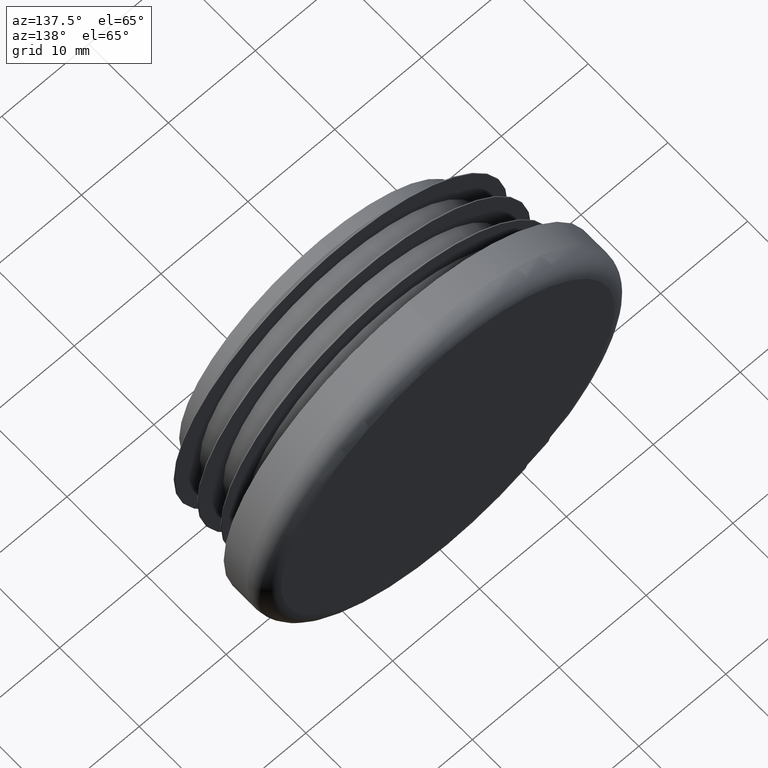
[diagram: clean part render]
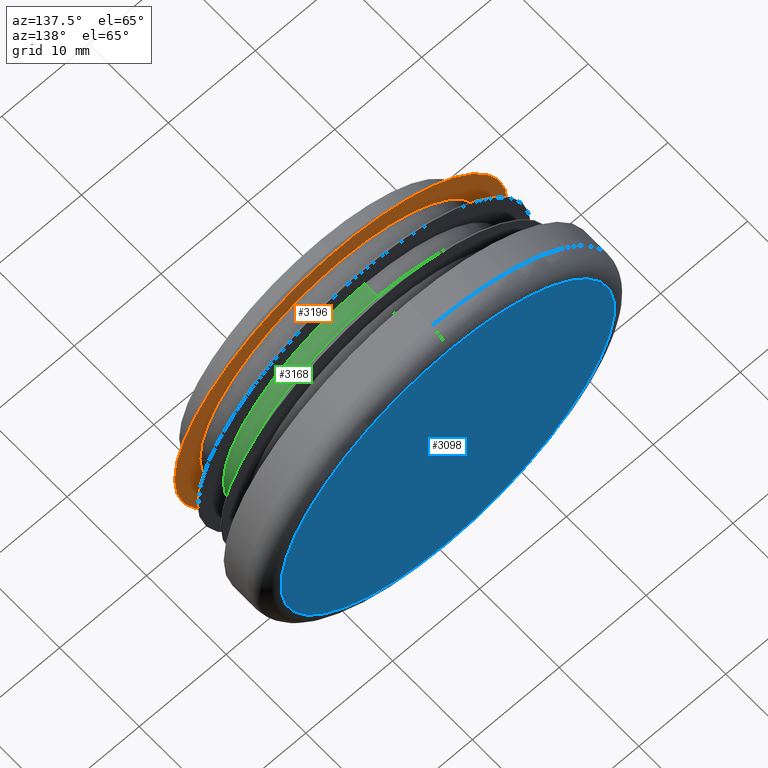
[diagram: same view with three faces highlighted in distinct colors, each labeled with its STEP entity id]
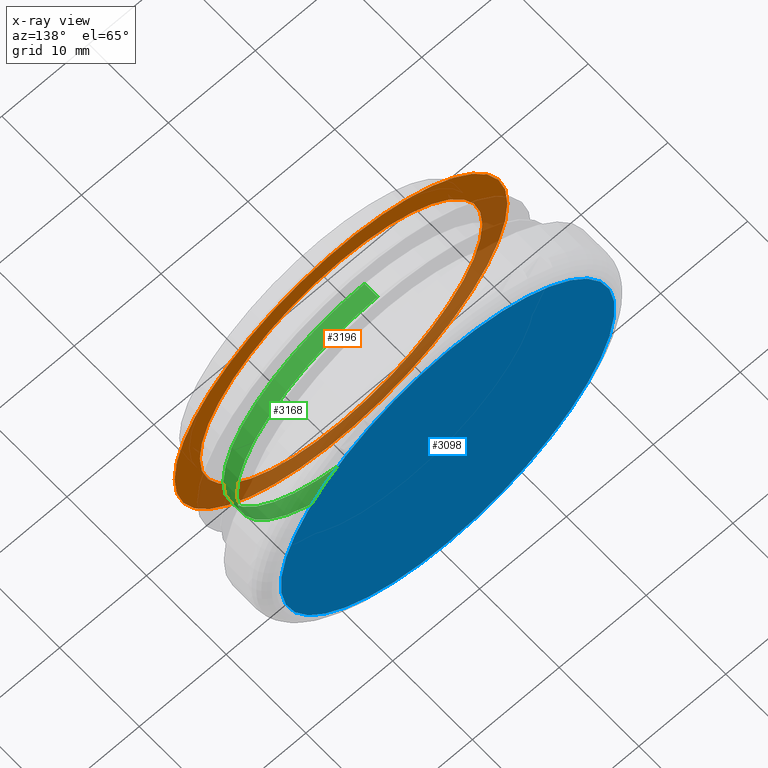
[diagram: x-ray of the same camera — body ghosted, the three highlighted faces saturated]
A machine part, auxiliary view with three faces highlighted in distinct colors.
The next image is the same camera in x-ray (body ghosted, the three faces saturated) — at least one of them is partly hidden behind the body in this view.
Their STEP definitions:

[orange] entity #3196 — the highlighted planar face has unit normal (-0, 1, 0).
#385 = DIRECTION ( 'NONE',  ( 1.047444401652940164E-14, -1.000000000000000000, -0.000000000000000000 ) ) ;
#465 = AXIS2_PLACEMENT_3D ( 'NONE', #8552, #12890, #6545 ) ;
#816 = AXIS2_PLACEMENT_3D ( 'NONE', #1197, #4304, #10779 ) ;
#888 = DIRECTION ( 'NONE',  ( -1.000000000000000000, -1.046171696281397461E-14, 0.000000000000000000 ) ) ;
#1197 = CARTESIAN_POINT ( 'NONE',  ( 16.25000000000006395, 2.599999999999997868, 0.000000000000000000 ) ) ;
#2364 = DIRECTION ( 'NONE',  ( 1.000000000000000000, 1.048533902581276840E-14, 0.000000000000000000 ) ) ;
#2425 = ORIENTED_EDGE ( 'NONE', *, *, #4796, .F. ) ;
#2606 = CARTESIAN_POINT ( 'NONE',  ( -1.780685865461278424E-27, 2.599999999999828226, -16.25000000000000000 ) ) ;
#3008 = CIRCLE ( 'NONE', #3315, 19.15000000000008740 ) ;
#3196 = ADVANCED_FACE ( 'NONE', ( #6382, #12854 ), #10697, .T. ) ;
#3315 = AXIS2_PLACEMENT_3D ( 'NONE', #10970, #5547, #2364 ) ;
#3347 = VERTEX_POINT ( 'NONE', #2606 ) ;
#4304 = DIRECTION ( 'NONE',  ( -1.047444401652940164E-14, 1.000000000000000000, 0.000000000000000000 ) ) ;
#4617 = DIRECTION ( 'NONE',  ( -1.000000000000000000, -1.046171696281397461E-14, 0.000000000000000000 ) ) ;
#4796 = EDGE_CURVE ( 'NONE', #10868, #5597, #13645, .T. ) ;
#4806 = ORIENTED_EDGE ( 'NONE', *, *, #12218, .T. ) ;
#5547 = DIRECTION ( 'NONE',  ( 1.047444401652940164E-14, -1.000000000000000000, -0.000000000000000000 ) ) ;
#5597 = VERTEX_POINT ( 'NONE', #7105 ) ;
#5951 = CARTESIAN_POINT ( 'NONE',  ( 1.990051048612668459E-15, 2.599999999999828226, 16.25000000000000000 ) ) ;
#6382 = FACE_BOUND ( 'NONE', #9624, .T. ) ;
#6511 = CIRCLE ( 'NONE', #12442, 16.25000000000000000 ) ;
#6545 = DIRECTION ( 'NONE',  ( 1.000000000000000000, 1.048533902581276840E-14, 0.000000000000000000 ) ) ;
#6638 = CARTESIAN_POINT ( 'NONE',  ( 0.000000000000000000, 2.599999999999828226, 0.000000000000000000 ) ) ;
#7105 = CARTESIAN_POINT ( 'NONE',  ( 19.15000000000005898, 2.600000000000027178, 0.000000000000000000 ) ) ;
#8186 = CARTESIAN_POINT ( 'NONE',  ( -19.15000000000011582, 2.599999999999625722, 2.346365830448889726E-15 ) ) ;
#8552 = CARTESIAN_POINT ( 'NONE',  ( -2.723355444297462579E-14, 2.599999999999826450, 0.000000000000000000 ) ) ;
#8826 = EDGE_CURVE ( 'NONE', #5597, #10868, #3008, .T. ) ;
#9142 = ORIENTED_EDGE ( 'NONE', *, *, #12114, .T. ) ;
#9363 = CARTESIAN_POINT ( 'NONE',  ( 0.000000000000000000, 2.599999999999828226, 0.000000000000000000 ) ) ;
#9624 = EDGE_LOOP ( 'NONE', ( #9142, #4806 ) ) ;
#10697 = PLANE ( 'NONE',  #816 ) ;
#10779 = DIRECTION ( 'NONE',  ( -1.000000000000000000, -1.047444401652940164E-14, 0.000000000000000000 ) ) ;
#10868 = VERTEX_POINT ( 'NONE', #8186 ) ;
#10970 = CARTESIAN_POINT ( 'NONE',  ( -2.723355444297462579E-14, 2.599999999999826450, 0.000000000000000000 ) ) ;
#11749 = AXIS2_PLACEMENT_3D ( 'NONE', #6638, #385, #4617 ) ;
#11807 = EDGE_LOOP ( 'NONE', ( #12946, #2425 ) ) ;
#12114 = EDGE_CURVE ( 'NONE', #3347, #12606, #12330, .T. ) ;
#12218 = EDGE_CURVE ( 'NONE', #12606, #3347, #6511, .T. ) ;
#12330 = CIRCLE ( 'NONE', #11749, 16.25000000000000000 ) ;
#12442 = AXIS2_PLACEMENT_3D ( 'NONE', #9363, #12644, #888 ) ;
#12606 = VERTEX_POINT ( 'NONE', #5951 ) ;
#12644 = DIRECTION ( 'NONE',  ( 1.047444401652940164E-14, -1.000000000000000000, -0.000000000000000000 ) ) ;
#12854 = FACE_OUTER_BOUND ( 'NONE', #11807, .T. ) ;
#12890 = DIRECTION ( 'NONE',  ( 1.047444401652940164E-14, -1.000000000000000000, -0.000000000000000000 ) ) ;
#12946 = ORIENTED_EDGE ( 'NONE', *, *, #8826, .F. ) ;
#13645 = CIRCLE ( 'NONE', #465, 19.15000000000008740 ) ;

[blue] entity #3098 — the highlighted planar face has unit normal (0, 1, 0).
#62 = VERTEX_POINT ( 'NONE', #194 ) ;
#194 = CARTESIAN_POINT ( 'NONE',  ( 0.000000000000000000, 16.00000000000000000, 19.19999999999999574 ) ) ;
#555 = AXIS2_PLACEMENT_3D ( 'NONE', #13740, #11528, #6564 ) ;
#2087 = AXIS2_PLACEMENT_3D ( 'NONE', #7804, #12012, #2546 ) ;
#2213 = EDGE_CURVE ( 'NONE', #6892, #62, #8414, .T. ) ;
#2546 = DIRECTION ( 'NONE',  ( 0.000000000000000000, 0.000000000000000000, 1.000000000000000000 ) ) ;
#3098 = ADVANCED_FACE ( 'NONE', ( #9711 ), #4067, .T. ) ;
#4067 = PLANE ( 'NONE',  #555 ) ;
#5489 = ORIENTED_EDGE ( 'NONE', *, *, #2213, .T. ) ;
#5727 = EDGE_LOOP ( 'NONE', ( #13732, #5489 ) ) ;
#5777 = DIRECTION ( 'NONE',  ( 0.000000000000000000, 0.000000000000000000, 1.000000000000000000 ) ) ;
#6564 = DIRECTION ( 'NONE',  ( 0.000000000000000000, -0.000000000000000000, 1.000000000000000000 ) ) ;
#6793 = DIRECTION ( 'NONE',  ( 0.000000000000000000, 1.000000000000000000, 0.000000000000000000 ) ) ;
#6892 = VERTEX_POINT ( 'NONE', #10856 ) ;
#7804 = CARTESIAN_POINT ( 'NONE',  ( 0.000000000000000000, 16.00000000000000000, 0.000000000000000000 ) ) ;
#8414 = CIRCLE ( 'NONE', #13187, 19.19999999999999574 ) ;
#9694 = EDGE_CURVE ( 'NONE', #62, #6892, #13691, .T. ) ;
#9711 = FACE_OUTER_BOUND ( 'NONE', #5727, .T. ) ;
#10856 = CARTESIAN_POINT ( 'NONE',  ( 2.473786534277652833E-15, 16.00000000000000000, -19.19999999999999574 ) ) ;
#11528 = DIRECTION ( 'NONE',  ( 0.000000000000000000, 1.000000000000000000, 0.000000000000000000 ) ) ;
#12012 = DIRECTION ( 'NONE',  ( 0.000000000000000000, 1.000000000000000000, 0.000000000000000000 ) ) ;
#12078 = CARTESIAN_POINT ( 'NONE',  ( 0.000000000000000000, 16.00000000000000000, 0.000000000000000000 ) ) ;
#13187 = AXIS2_PLACEMENT_3D ( 'NONE', #12078, #6793, #5777 ) ;
#13691 = CIRCLE ( 'NONE', #2087, 19.19999999999999574 ) ;
#13732 = ORIENTED_EDGE ( 'NONE', *, *, #9694, .T. ) ;
#13740 = CARTESIAN_POINT ( 'NONE',  ( 0.000000000000000000, 16.00000000000000000, 0.000000000000000000 ) ) ;

[green] entity #3168 — the highlighted cylindrical surface (partial cylindrical patch) has radius 16.25 mm, axis along (-0, -1, -0).
#57 = DIRECTION ( 'NONE',  ( 0.000000000000000000, 0.000000000000000000, -1.000000000000000000 ) ) ;
#286 = VERTEX_POINT ( 'NONE', #6183 ) ;
#561 = CARTESIAN_POINT ( 'NONE',  ( 0.000000000000000000, 5.550000000000023803, 0.000000000000000000 ) ) ;
#788 = VERTEX_POINT ( 'NONE', #11502 ) ;
#801 = CARTESIAN_POINT ( 'NONE',  ( -7.541599691901369996E-14, 7.200000000000192024, 0.000000000000000000 ) ) ;
#1385 = CYLINDRICAL_SURFACE ( 'NONE', #10365, 16.25000000000000000 ) ;
#1576 = DIRECTION ( 'NONE',  ( 1.047444401652940164E-14, -1.000000000000000000, -0.000000000000000000 ) ) ;
#2659 = DIRECTION ( 'NONE',  ( -0.000000000000000000, -1.000000000000000000, -0.000000000000000000 ) ) ;
#2829 = EDGE_CURVE ( 'NONE', #286, #6446, #6073, .T. ) ;
#2855 = FACE_OUTER_BOUND ( 'NONE', #12520, .T. ) ;
#2982 = EDGE_CURVE ( 'NONE', #6446, #11781, #3524, .T. ) ;
#3047 = VERTEX_POINT ( 'NONE', #11485 ) ;
#3168 = ADVANCED_FACE ( 'NONE', ( #2855 ), #1385, .T. ) ;
#3312 = CARTESIAN_POINT ( 'NONE',  ( 0.000000000000000000, 11.00000000000000000, 0.000000000000000000 ) ) ;
#3524 = LINE ( 'NONE', #8310, #12037 ) ;
#3637 = CARTESIAN_POINT ( 'NONE',  ( -1.774937036747276562E-27, 7.200000000000192024, -16.25000000000000000 ) ) ;
#3650 = CIRCLE ( 'NONE', #13731, 16.25000000000000000 ) ;
#4982 = DIRECTION ( 'NONE',  ( -1.047444401652940164E-14, 1.000000000000000000, 0.000000000000000000 ) ) ;
#5312 = ORIENTED_EDGE ( 'NONE', *, *, #7619, .F. ) ;
#5437 = DIRECTION ( 'NONE',  ( -0.000000000000000000, -1.000000000000000000, -0.000000000000000000 ) ) ;
#5468 = EDGE_CURVE ( 'NONE', #11781, #3047, #3650, .T. ) ;
#5619 = EDGE_CURVE ( 'NONE', #788, #3047, #8852, .T. ) ;
#6042 = CARTESIAN_POINT ( 'NONE',  ( 1.990051048614449313E-15, 11.00000000000000000, 16.25000000000000000 ) ) ;
#6073 = CIRCLE ( 'NONE', #6802, 16.25000000000000000 ) ;
#6183 = CARTESIAN_POINT ( 'NONE',  ( 16.24999999999992539, 7.200000000000362554, 2.168792044572518161E-15 ) ) ;
#6446 = VERTEX_POINT ( 'NONE', #3637 ) ;
#6802 = AXIS2_PLACEMENT_3D ( 'NONE', #801, #4982, #8180 ) ;
#6999 = AXIS2_PLACEMENT_3D ( 'NONE', #10442, #11499, #8490 ) ;
#7619 = EDGE_CURVE ( 'NONE', #788, #286, #12936, .T. ) ;
#8180 = DIRECTION ( 'NONE',  ( -1.000000000000000000, -1.046171696281397461E-14, 0.000000000000000000 ) ) ;
#8310 = CARTESIAN_POINT ( 'NONE',  ( 0.000000000000000000, 11.00000000000000000, -16.25000000000000000 ) ) ;
#8490 = DIRECTION ( 'NONE',  ( -1.000000000000000000, -1.046171696281397461E-14, 0.000000000000000000 ) ) ;
#8521 = ORIENTED_EDGE ( 'NONE', *, *, #2829, .F. ) ;
#8728 = ORIENTED_EDGE ( 'NONE', *, *, #2982, .F. ) ;
#8852 = LINE ( 'NONE', #6042, #12814 ) ;
#10365 = AXIS2_PLACEMENT_3D ( 'NONE', #3312, #5437, #57 ) ;
#10442 = CARTESIAN_POINT ( 'NONE',  ( -7.541599691901369996E-14, 7.200000000000192024, 0.000000000000000000 ) ) ;
#10678 = ORIENTED_EDGE ( 'NONE', *, *, #5468, .F. ) ;
#11485 = CARTESIAN_POINT ( 'NONE',  ( 1.990051048612668459E-15, 5.550000000000023803, 16.25000000000000000 ) ) ;
#11499 = DIRECTION ( 'NONE',  ( -1.047444401652940164E-14, 1.000000000000000000, 0.000000000000000000 ) ) ;
#11502 = CARTESIAN_POINT ( 'NONE',  ( 1.990051048612672798E-15, 7.200000000000192024, 16.25000000000000000 ) ) ;
#11781 = VERTEX_POINT ( 'NONE', #11943 ) ;
#11943 = CARTESIAN_POINT ( 'NONE',  ( -1.780685865461278424E-27, 5.550000000000023803, -16.25000000000000000 ) ) ;
#12037 = VECTOR ( 'NONE', #13478, 1000.000000000000000 ) ;
#12130 = DIRECTION ( 'NONE',  ( -1.000000000000000000, -1.046171696281397461E-14, 0.000000000000000000 ) ) ;
#12407 = ORIENTED_EDGE ( 'NONE', *, *, #5619, .T. ) ;
#12520 = EDGE_LOOP ( 'NONE', ( #5312, #12407, #10678, #8728, #8521 ) ) ;
#12814 = VECTOR ( 'NONE', #2659, 1000.000000000000000 ) ;
#12936 = CIRCLE ( 'NONE', #6999, 16.25000000000000000 ) ;
#13478 = DIRECTION ( 'NONE',  ( -0.000000000000000000, -1.000000000000000000, -0.000000000000000000 ) ) ;
#13731 = AXIS2_PLACEMENT_3D ( 'NONE', #561, #1576, #12130 ) ;